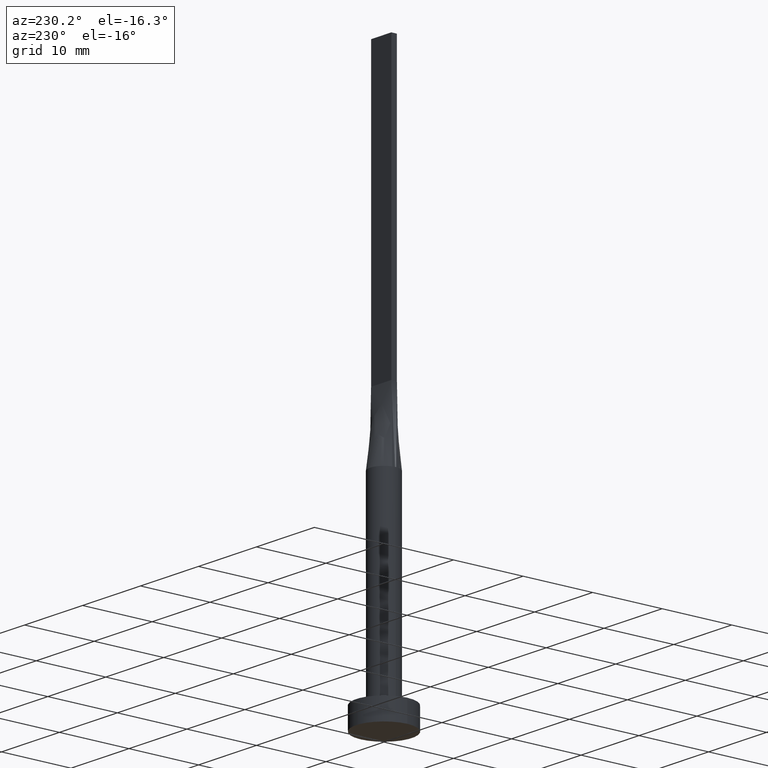
[diagram: clean part render]
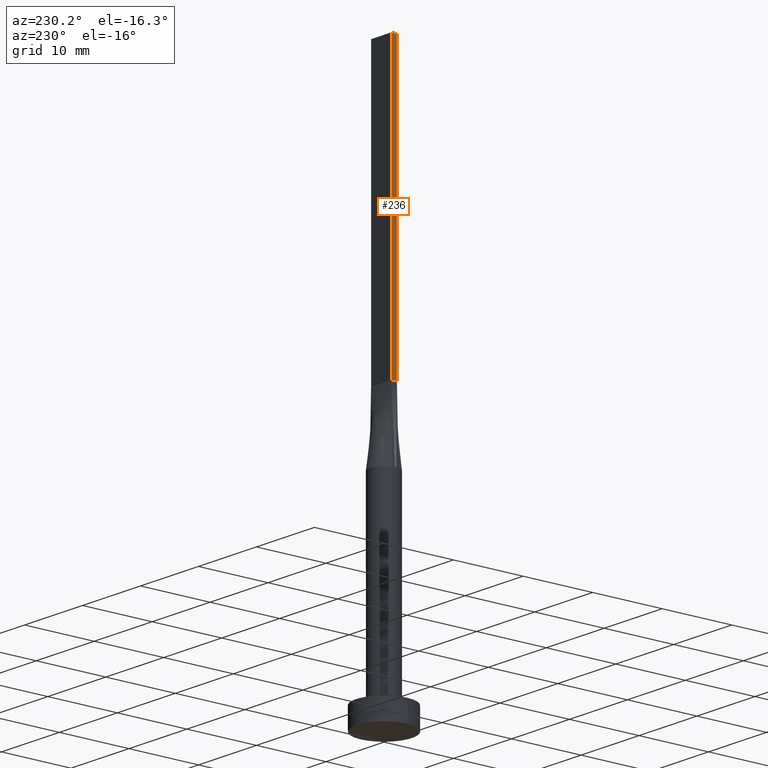
[diagram: same view with one face highlighted and labeled with its STEP entity id]
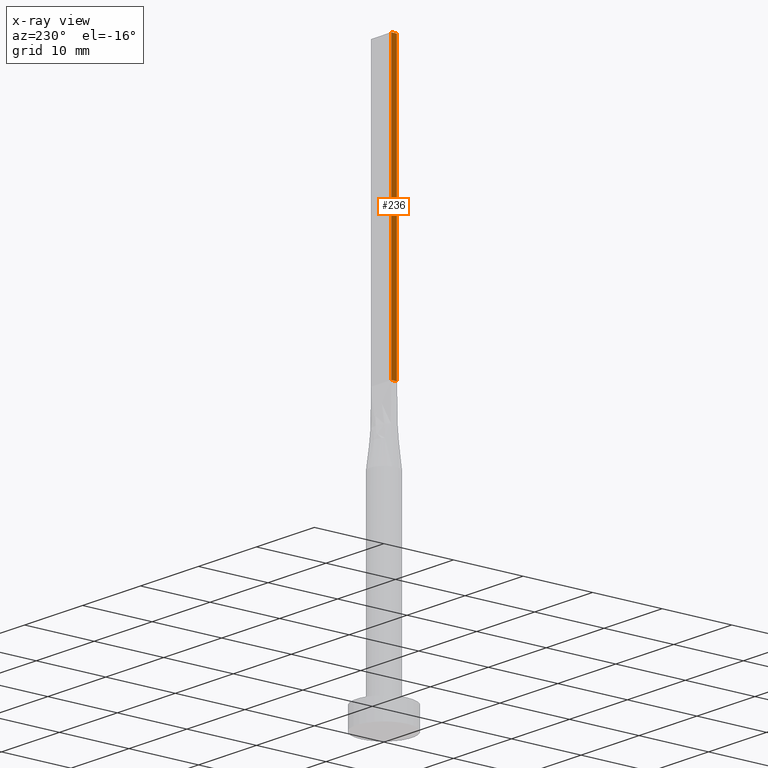
[diagram: x-ray of the same camera — body ghosted, the highlighted face saturated]
A machine part, auxiliary view. The second image highlights one B-rep face of the part: STEP entity #236.
The next image is the same camera in x-ray: the body ghosted, the highlighted face saturated — about 0% of this face is hidden behind the body in this view.
In plain terms, the highlighted planar face has unit normal (1, -0, 0).
Its self-contained STEP definition (entity closure, byte-faithful):
#9 = DIRECTION ( 'NONE',  ( -0.000000000000000000, -0.000000000000000000, -1.000000000000000000 ) ) ;
#17 = VERTEX_POINT ( 'NONE', #254 ) ;
#32 = VECTOR ( 'NONE', #524, 1000.000000000000000 ) ;
#42 = CARTESIAN_POINT ( 'NONE',  ( -1.749999999999999778, 0.4000000000000003553, 80.00000000000000000 ) ) ;
#56 = CARTESIAN_POINT ( 'NONE',  ( -1.750000000000000000, -0.3999999999999996891, 80.00000000000000000 ) ) ;
#64 = CARTESIAN_POINT ( 'NONE',  ( -1.749999999999999778, 0.4000000000000003553, 40.00000000000000000 ) ) ;
#76 = PLANE ( 'NONE',  #214 ) ;
#111 = EDGE_CURVE ( 'NONE', #360, #220, #326, .T. ) ;
#130 = DIRECTION ( 'NONE',  ( 1.000000000000000000, -2.710505431213761085E-16, 0.000000000000000000 ) ) ;
#139 = VECTOR ( 'NONE', #9, 1000.000000000000000 ) ;
#158 = CARTESIAN_POINT ( 'NONE',  ( -1.749999999999999778, 0.4000000000000003553, 80.00000000000000000 ) ) ;
#168 = ORIENTED_EDGE ( 'NONE', *, *, #367, .F. ) ;
#214 = AXIS2_PLACEMENT_3D ( 'NONE', #345, #130, #432 ) ;
#220 = VERTEX_POINT ( 'NONE', #531 ) ;
#229 = LINE ( 'NONE', #56, #139 ) ;
#231 = CARTESIAN_POINT ( 'NONE',  ( -1.749999999999999778, 0.4000000000000003553, 80.00000000000000000 ) ) ;
#236 = ADVANCED_FACE ( 'NONE', ( #259 ), #76, .F. ) ;
#254 = CARTESIAN_POINT ( 'NONE',  ( -1.750000000000000000, -0.3999999999999996891, 40.00000000000000000 ) ) ;
#257 = VECTOR ( 'NONE', #351, 1000.000000000000000 ) ;
#259 = FACE_OUTER_BOUND ( 'NONE', #537, .T. ) ;
#263 = EDGE_CURVE ( 'NONE', #360, #525, #438, .T. ) ;
#273 = EDGE_CURVE ( 'NONE', #525, #17, #576, .T. ) ;
#321 = ORIENTED_EDGE ( 'NONE', *, *, #263, .T. ) ;
#326 = LINE ( 'NONE', #158, #352 ) ;
#343 = ORIENTED_EDGE ( 'NONE', *, *, #111, .F. ) ;
#345 = CARTESIAN_POINT ( 'NONE',  ( -1.749999999999999778, 0.4000000000000003553, 80.00000000000000000 ) ) ;
#351 = DIRECTION ( 'NONE',  ( -0.000000000000000000, -0.000000000000000000, -1.000000000000000000 ) ) ;
#352 = VECTOR ( 'NONE', #523, 1000.000000000000000 ) ;
#360 = VERTEX_POINT ( 'NONE', #231 ) ;
#367 = EDGE_CURVE ( 'NONE', #220, #17, #229, .T. ) ;
#405 = ORIENTED_EDGE ( 'NONE', *, *, #273, .T. ) ;
#432 = DIRECTION ( 'NONE',  ( 2.710505431213761085E-16, 1.000000000000000000, 0.000000000000000000 ) ) ;
#438 = LINE ( 'NONE', #42, #257 ) ;
#484 = CARTESIAN_POINT ( 'NONE',  ( -1.749999999999999778, 0.4000000000000003553, 40.00000000000000000 ) ) ;
#523 = DIRECTION ( 'NONE',  ( -2.710505431213761085E-16, -1.000000000000000000, 0.000000000000000000 ) ) ;
#524 = DIRECTION ( 'NONE',  ( -2.710505431213761085E-16, -1.000000000000000000, 0.000000000000000000 ) ) ;
#525 = VERTEX_POINT ( 'NONE', #64 ) ;
#531 = CARTESIAN_POINT ( 'NONE',  ( -1.750000000000000000, -0.3999999999999996891, 80.00000000000000000 ) ) ;
#537 = EDGE_LOOP ( 'NONE', ( #405, #168, #343, #321 ) ) ;
#576 = LINE ( 'NONE', #484, #32 ) ;